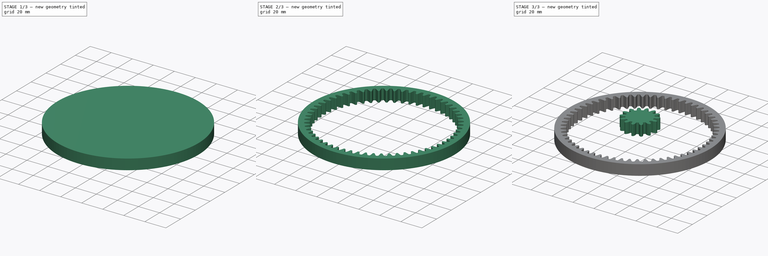
[diagram: build sequence overview — one tinted view per stage of 3, left to right]
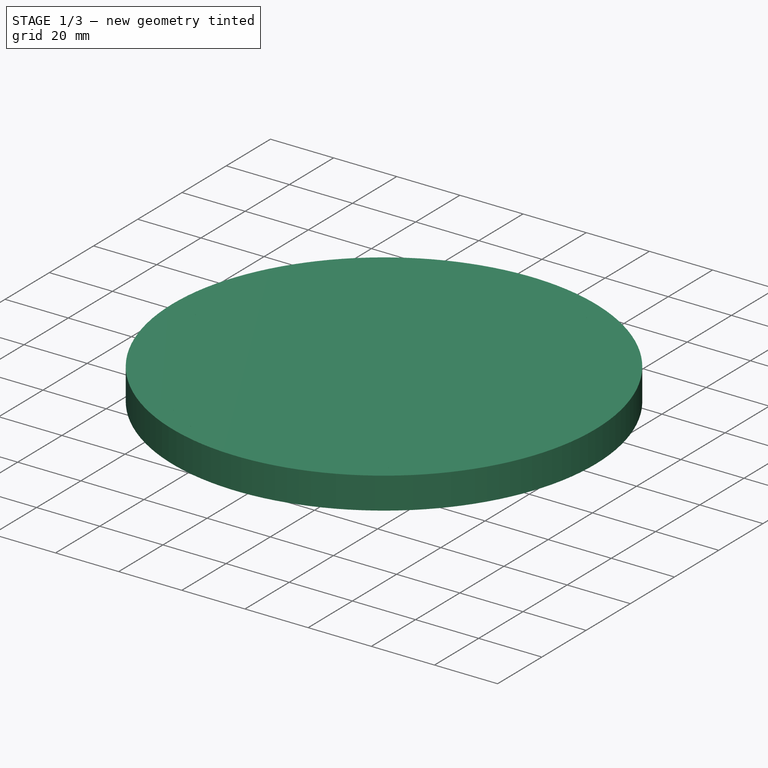
[diagram: stage 1 of 3 — iso view after this stage's code; geometry added in this stage tinted green]
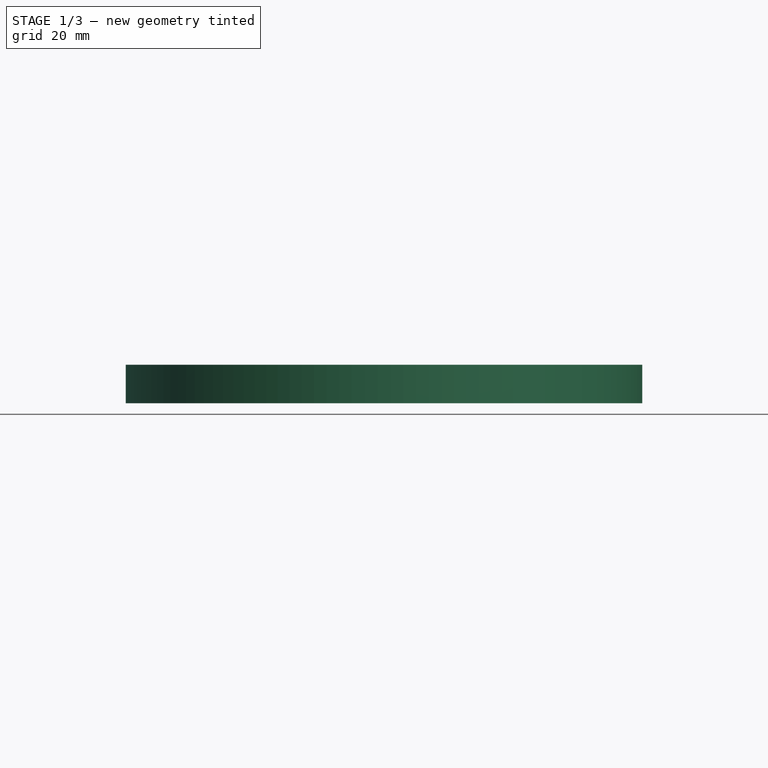
[diagram: stage 1 of 3 — front view after this stage's code; geometry added in this stage tinted green]
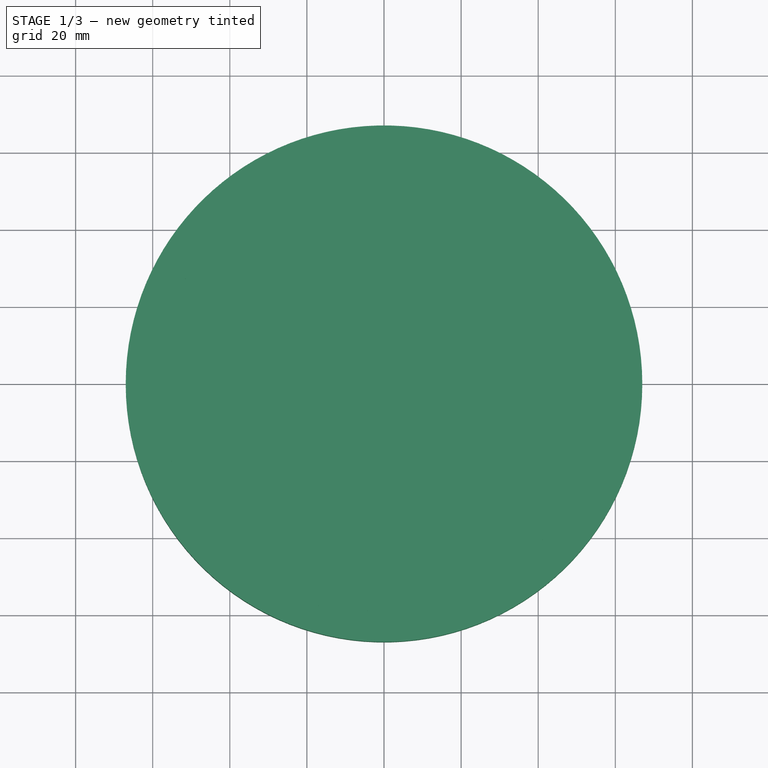
[diagram: stage 1 of 3 — top view after this stage's code; geometry added in this stage tinted green]
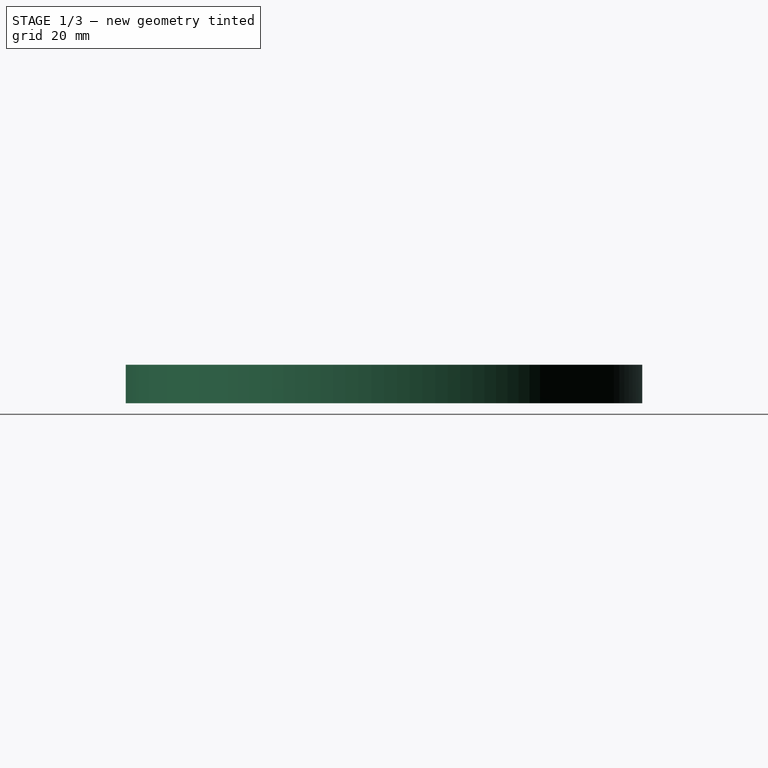
[diagram: stage 1 of 3 — right view after this stage's code; geometry added in this stage tinted green]
FCSTD DOCUMENT  (FreeCAD 0.19R24276 (Git))
Label: assambly_gears_2
License: All rights reserved
LicenseURL: http://en.wikipedia.org/wiki/All_rights_reserved
objects: PartDesign::CoordinateSystem×5, App::DocumentObjectGroup×3, App::Link×3, PartDesign::FeatureBase×2, PartDesign::Body×2, Part::Part2DObjectPython×2, App::FeaturePython×1, Part::Cylinder×1, Part::Offset2D×1, Part::Extrusion×1, Part::Cut×1, Sketcher::SketchObject×1, App::Part×1
note: 16 computed .brp shape members not serialized (recipe doc carries the construction recipe); baked Part::Feature solids carry a one-line shape summary decoded from their .brp

FEATURE [PartDesign::CoordinateSystem] LCS_g_14t
  AttacherType = Attacher::AttachEngine3D
  MapMode = 45
  Placement = pos=(1.2e-15,-4.5e-15,10) rot=(0,0,1;0rad)
  Support = -> [BaseFeature]
FEATURE [PartDesign::Body] Body  label="Body_14t_pd"
  Group = -> [BaseFeature,LCS_g_14t]
  Origin = -> Origin001
  Tip = -> BaseFeature
FEATURE [Part::Part2DObjectPython] InvoluteGear  # Draft 2D object (typed FeaturePython)
  ExternalGear = true
  HighPrecision = true
  Modules = 2
  NumberOfTeeth = 60
  PressureAngle = 20
FEATURE [Part::Cylinder] Cylinder  label="Цилиндр"
  Angle = 360
  AttacherType = Attacher::AttachEngine3D
  Height = 10
  Placement = pos=(0,0,-10) rot=(0,0,1;0rad)
  Radius = 67
FEATURE [Part::Part2DObjectPython] InvoluteGear001  # Draft 2D object (typed FeaturePython)
  ExternalGear = true
  HighPrecision = true
  Modules = 2
  NumberOfTeeth = 60
  PressureAngle = 20
FEATURE [Part::Offset2D] Offset2D
  Fill = false
  Intersection = false
  Join = 0
  Mode = 1
  SelfIntersection = false
  Source = -> InvoluteGear001
  Value = 0.1
FEATURE [Part::Extrusion] Extrude
  Base = -> Offset2D
  Dir = (0,0,-1)
  DirMode = 2
  FaceMakerClass = Part::FaceMakerBullseye
  LengthFwd = 10
  LengthRev = 0
  Solid = true
  Symmetric = false
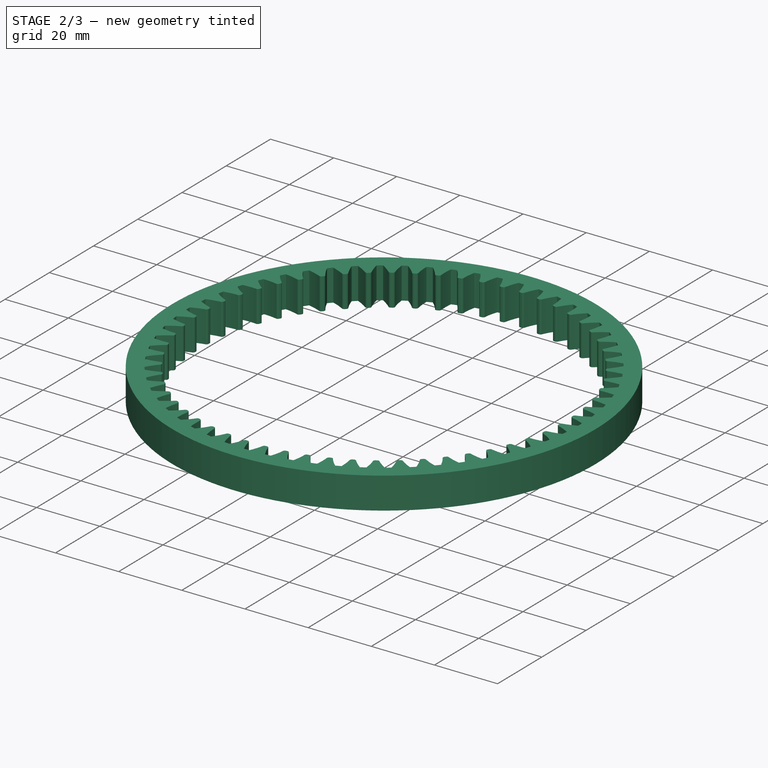
[diagram: stage 2 of 3 — iso view after this stage's code; geometry added in this stage tinted green]
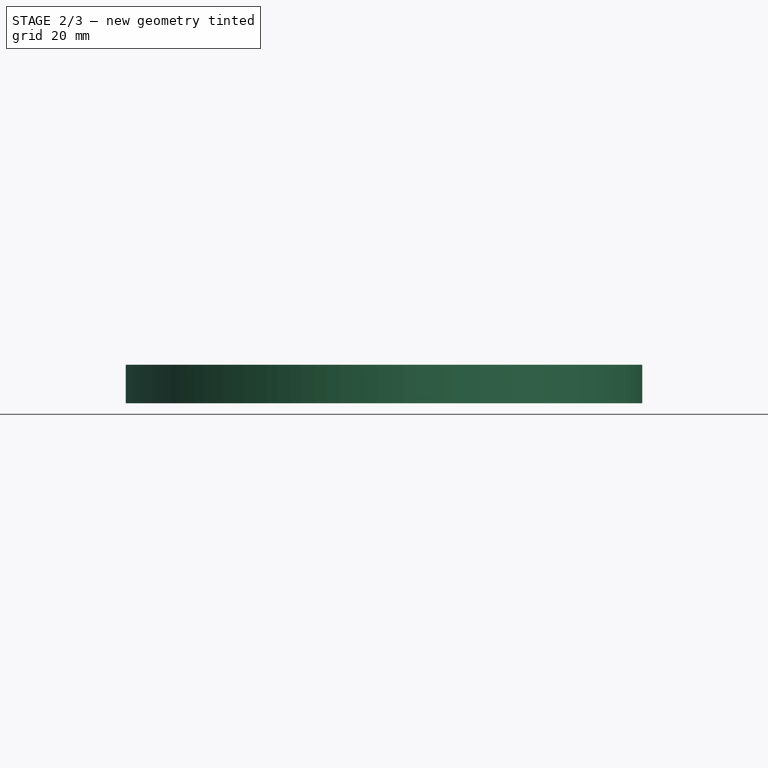
[diagram: stage 2 of 3 — front view after this stage's code; geometry added in this stage tinted green]
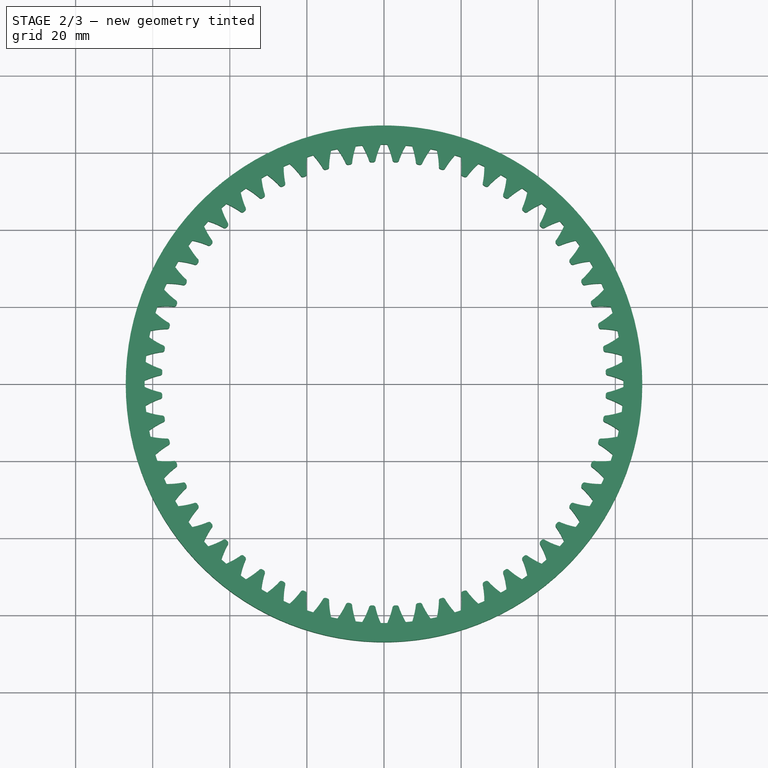
[diagram: stage 2 of 3 — top view after this stage's code; geometry added in this stage tinted green]
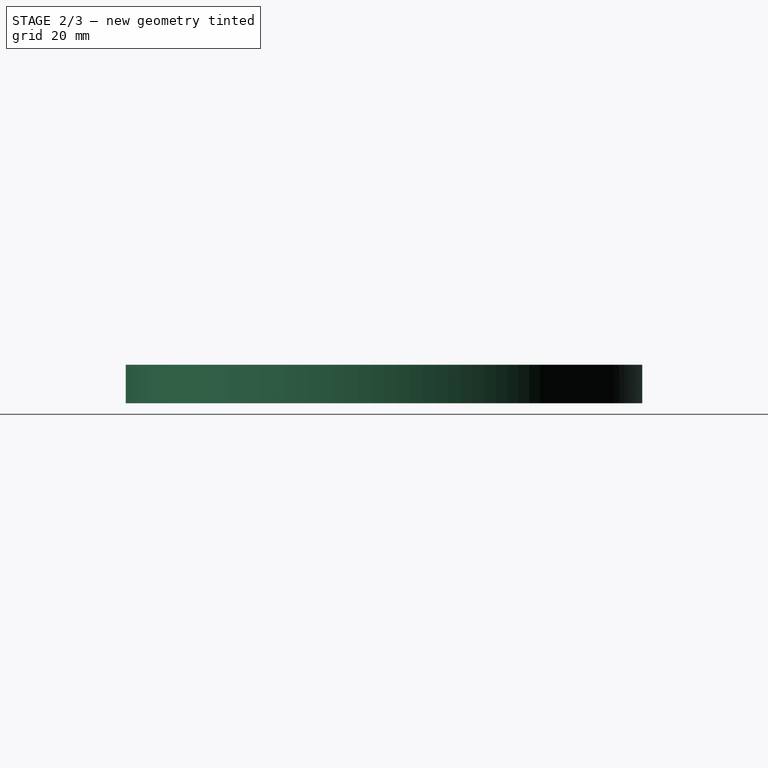
[diagram: stage 2 of 3 — right view after this stage's code; geometry added in this stage tinted green]
FEATURE [Part::Cut] Cut
  Base = -> Cylinder
  Tool = -> Extrude
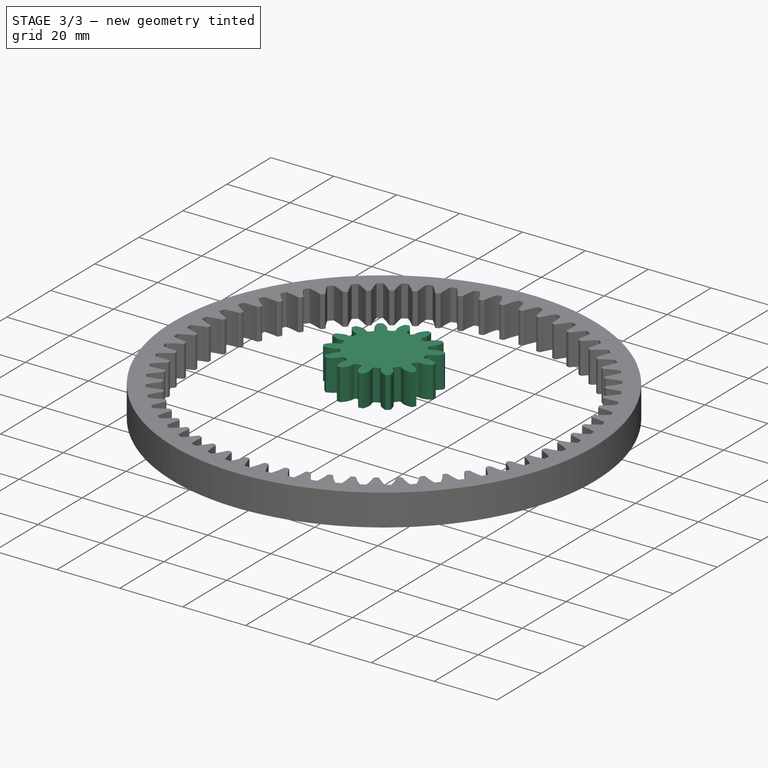
[diagram: stage 3 of 3 — iso view after this stage's code; geometry added in this stage tinted green]
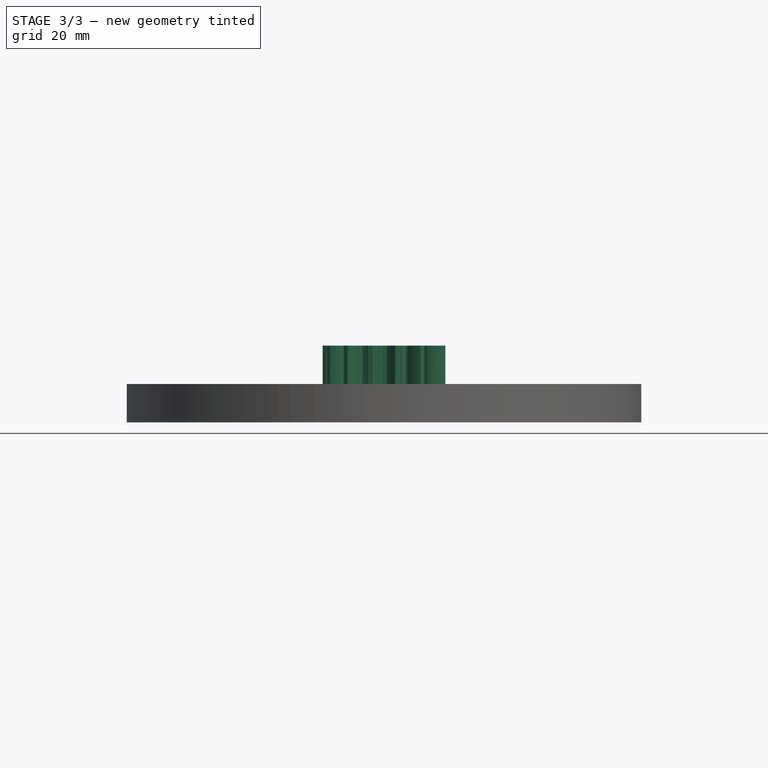
[diagram: stage 3 of 3 — front view after this stage's code; geometry added in this stage tinted green]
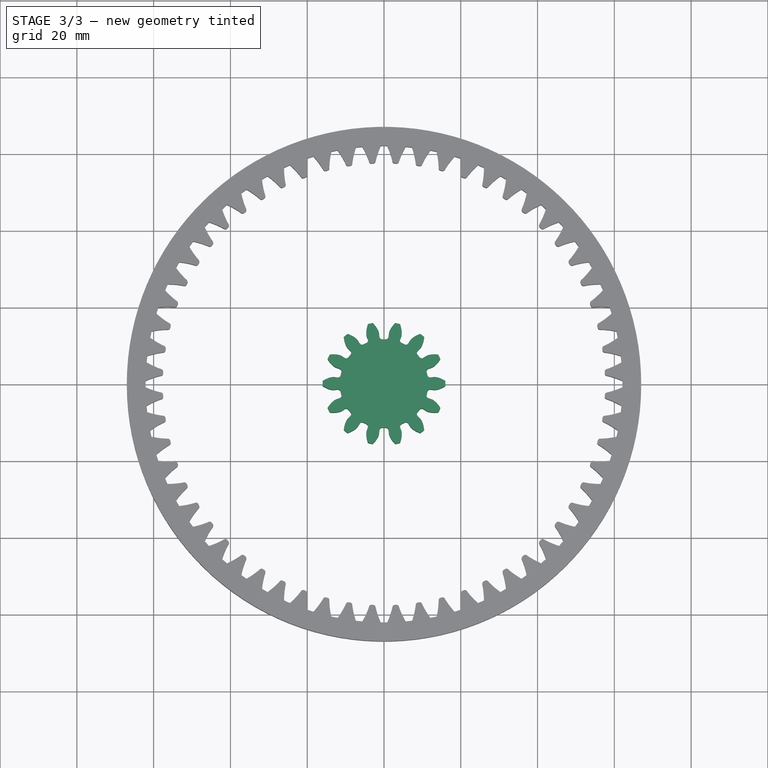
[diagram: stage 3 of 3 — top view after this stage's code; geometry added in this stage tinted green]
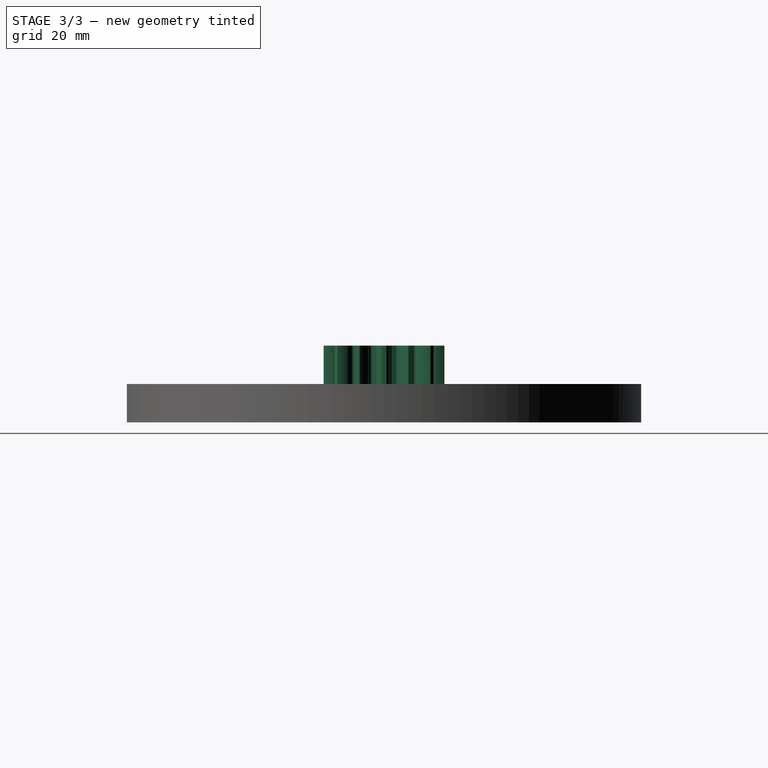
[diagram: stage 3 of 3 — right view after this stage's code; geometry added in this stage tinted green]
FEATURE [PartDesign::CoordinateSystem] LCS_Origin
  AttacherType = Attacher::AttachEngine3D
  MapMode = 2
  Support = -> [X_Axis]
FEATURE [App::FeaturePython] Variables  # WARN: FeaturePython — macro-defined, semantics opaque (R4)
  Type = App::PropertyContainer
  angle = 63
FEATURE [App::DocumentObjectGroup] Configurations
FEATURE [PartDesign::FeatureBase] BaseFeature
FEATURE [PartDesign::FeatureBase] BaseFeature001
  BaseFeature = -> Cut
FEATURE [Sketcher::SketchObject] Sketch
  FullyConstrained = false
  MapMode = 5
  Support = -> [XY_Plane]
  sketch-geometry (3):
    g0: Circle CenterX=0 CenterY=0 CenterZ=0 NormalX=0 NormalY=0 NormalZ=1 AngleXU=0 Radius=62
    g1: Circle CenterX=46 CenterY=0 CenterZ=0 NormalX=0 NormalY=0 NormalZ=1 AngleXU=0 Radius=16
    g2: Circle CenterX=-46 CenterY=0 CenterZ=0 NormalX=0 NormalY=0 NormalZ=1 AngleXU=0 Radius=16
  constraints (7):
    c: Coincident(g0,g-1)
    c: DistanceX(g0,g1) = 46
    c: Diameter(g0) = 124
    c: Diameter(g1) = 32
    c: PointOnObject(g2,g-1)
    c: Equal(g2,g1)
    c: DistanceX(g2,g0) = 46
FEATURE [App::DocumentObjectGroup] Constraints
  Group = -> [Sketch]
FEATURE [PartDesign::CoordinateSystem] LCS_ms_g14_left
  AttacherType = Attacher::AttachEngine3D
  MapMode = 11
  Placement = pos=(-46,0,0) rot=(0,0,1;1.5708rad)
  Support = -> [Sketch]
FEATURE [PartDesign::CoordinateSystem] LCS_MS_g14t_right
  AttacherType = Attacher::AttachEngine3D
  MapMode = 11
  Placement = pos=(46,0,0) rot=(0,0,1;1.5708rad)
  Support = -> [Sketch]
FEATURE [App::Link] Body_14t_pd001  label="Body_14t_left"
  AttachedBy = #LCS_g_14t
  AttachedTo = Parent Assembly#LCS_ms_g14_left
  AttachmentOffset = pos=(0,0,0) rot=(0,0,1;4.71239rad)
  LinkPlacement = pos=(-46,3.2e-15,-10) rot=(0,0,1;0rad)
  LinkedObject = -> Body
  Placement = pos=(-46,3.2e-15,-10) rot=(0,0,1;0rad)
  SolverId = Placement::ExpressionEngine
FEATURE [App::Link] Body_14t_pd002  label="Body_14t_right"
  AttachedBy = #LCS_g_14t
  AttachedTo = Parent Assembly#LCS_MS_g14t_right
  AttachmentOffset = pos=(0,0,0) rot=(0,0,1;1.5708rad)
  LinkPlacement = pos=(46,-4.5e-15,-10) rot=(0,0,1;3.14159rad)
  LinkedObject = -> Body
  Placement = pos=(46,-4.5e-15,-10) rot=(0,0,1;3.14159rad)
  SolverId = Placement::ExpressionEngine
FEATURE [PartDesign::CoordinateSystem] LCS_in_g
  AttacherType = Attacher::AttachEngine3D
  MapMode = 5
  Support = -> [Cut]
FEATURE [PartDesign::Body] Body001  label="Body_in_gear"
  BaseFeature = -> Cut
  Group = -> [BaseFeature001,InvoluteGear,LCS_in_g]
  Origin = -> Origin002
  Tip = -> BaseFeature001
FEATURE [App::DocumentObjectGroup] Parts
  Group = -> [Body,Body001]
FEATURE [App::Link] Body_in_gear  label="Body_in_gear001"
  AttachedBy = #LCS_in_g
  AttachedTo = Parent Assembly#LCS_Origin
  LinkPlacement = pos=(0,0,0) rot=(0,0,1;0.890118rad)
  LinkedObject = -> Body001
  Placement = pos=(0,0,0) rot=(0,0,1;0.890118rad)
  SolverId = Placement::ExpressionEngine
FEATURE [App::Part] Assembly
  AssemblyType = Part::Link
  Group = -> [LCS_Origin,Variables,Constraints,Configurations,Sketch,LCS_ms_g14_left,LCS_MS_g14t_right,Body_14t_pd001,Body_14t_pd002,Body_in_gear]
  Origin = -> Origin
  Type = Assembly
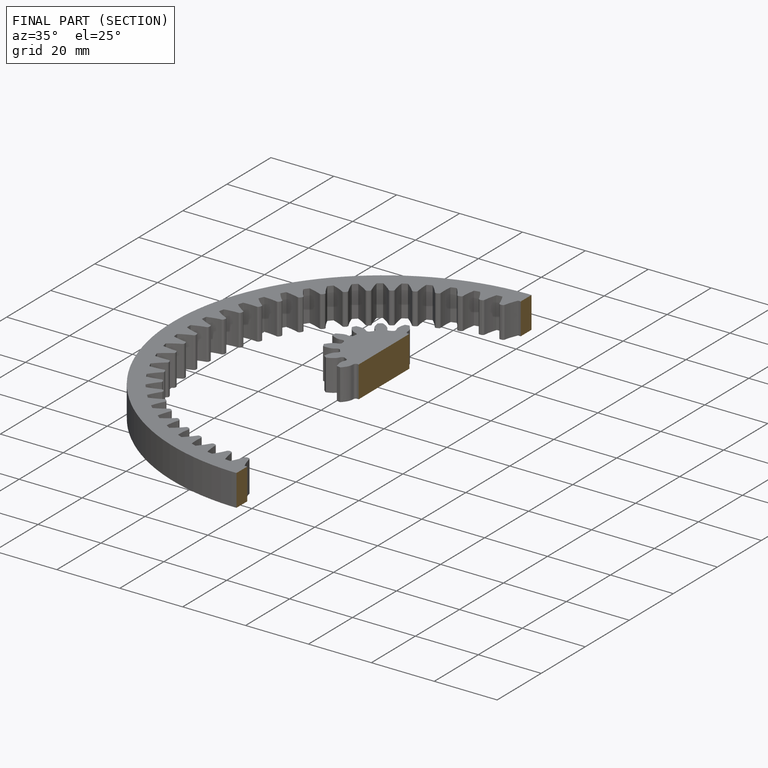
[diagram: finished part — half-section view (interior)]
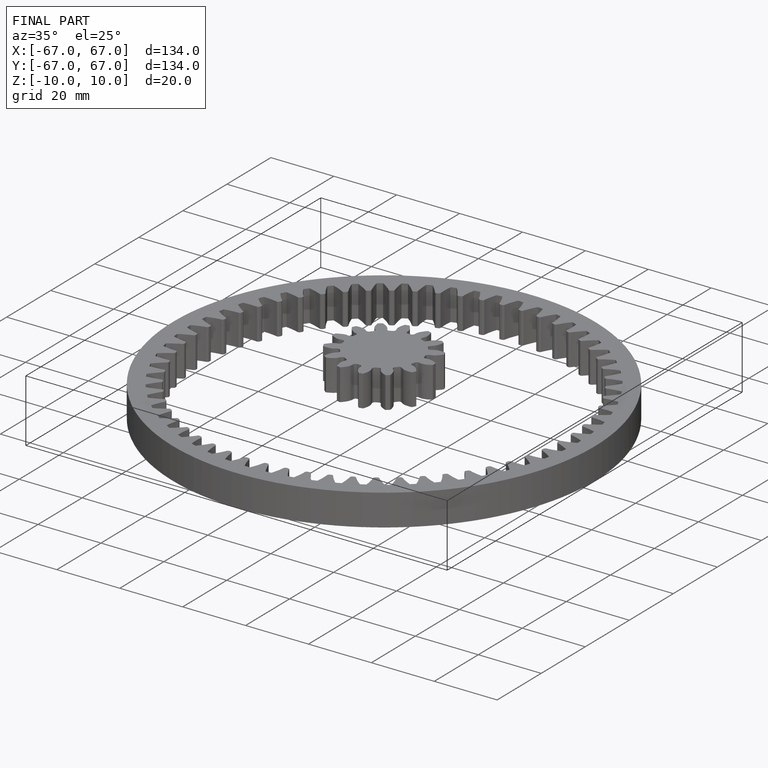
[diagram: finished part — iso view with bounding-box wireframe]
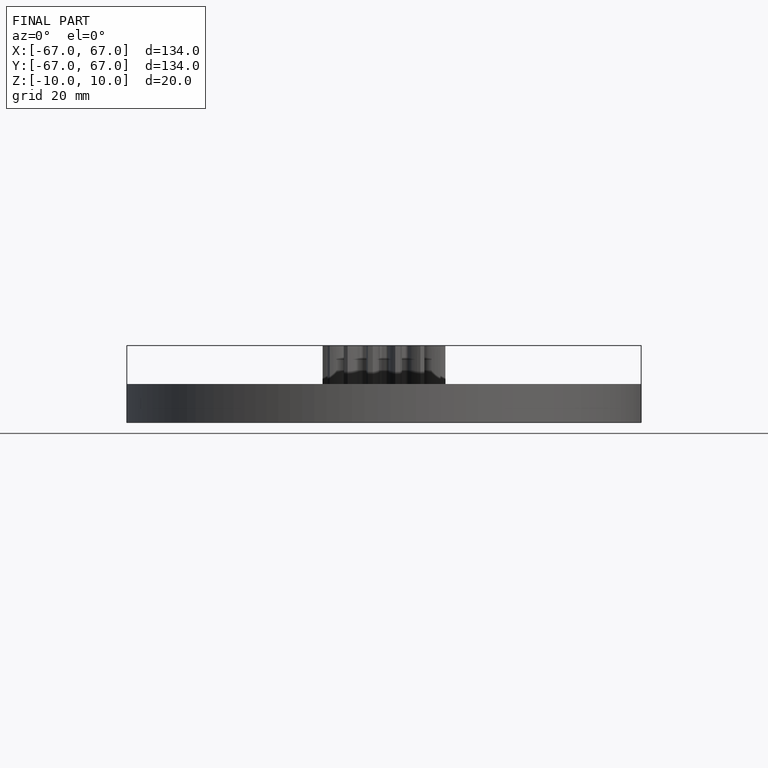
[diagram: finished part — front view with bounding-box wireframe]
